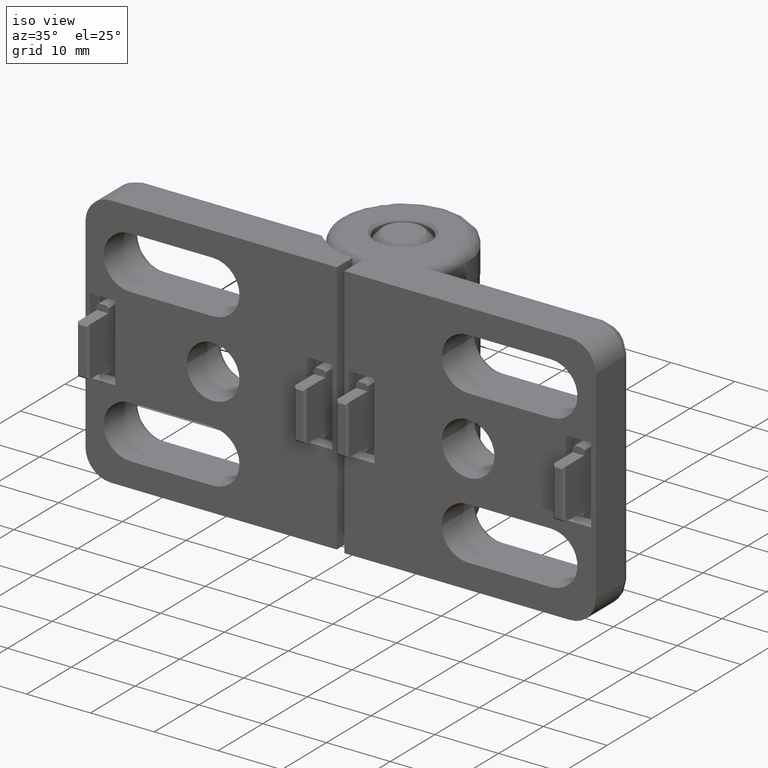
[diagram: clean part render]
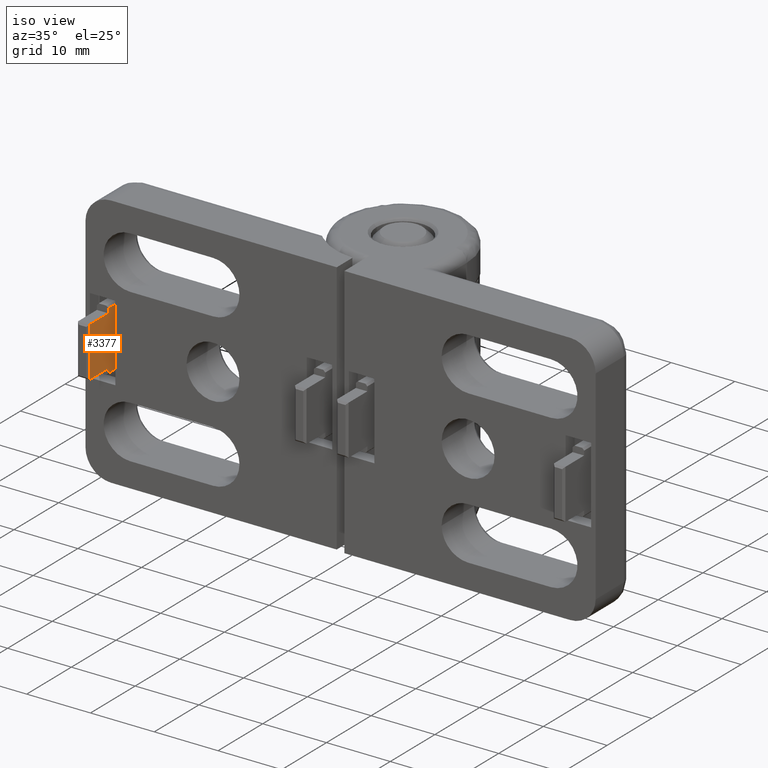
[diagram: same view with one face highlighted and labeled with its STEP entity id]
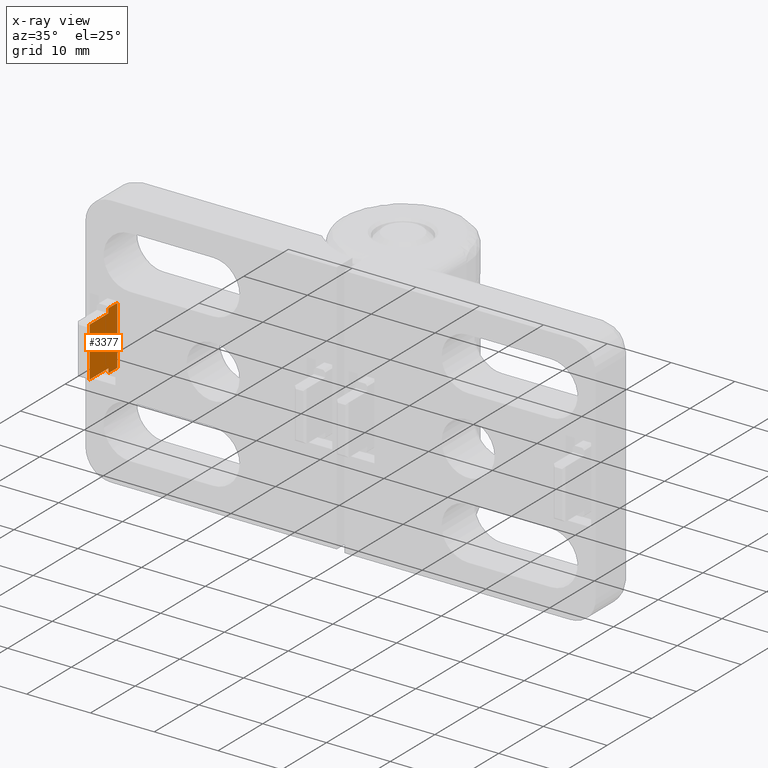
[diagram: x-ray of the same camera — body ghosted, the highlighted face saturated]
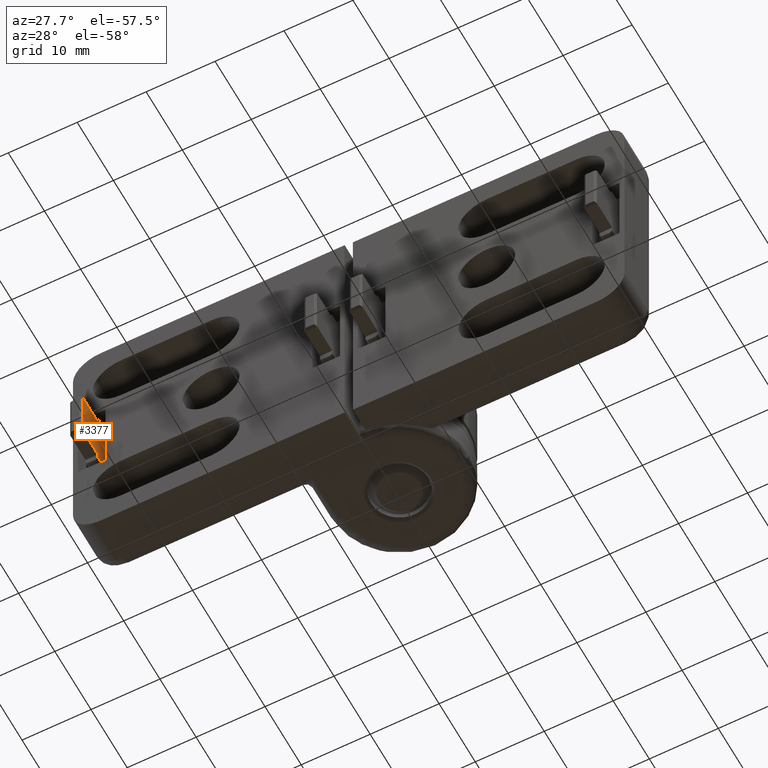
[diagram: same view with one face highlighted and labeled with its STEP entity id]
A machine part, iso view. The second image highlights one B-rep face of the part: STEP entity #3377.
The next image is the same camera in x-ray: the body ghosted, the highlighted face saturated — about 0% of this face is hidden behind the body in this view.
A second angle (auxiliary view) of the same face is appended — the face is thin or edge-on in the first view.
In plain terms, the highlighted planar face has unit normal (-1, 0, 0).
Its self-contained STEP definition (entity closure, byte-faithful):
#39 = DIRECTION ( 'NONE',  ( 0.0000000000000000000, -1.000000000000000000, 0.0000000000000000000 ) ) ;
#52 = CARTESIAN_POINT ( 'NONE',  ( -36.39999999999999100, -14.00000000000000500, -15.10000000000000100 ) ) ;
#74 = VECTOR ( 'NONE', #1892, 1000.000000000000000 ) ;
#101 = CARTESIAN_POINT ( 'NONE',  ( -36.39999999999999100, -18.19999999999999600, -15.10000000000000100 ) ) ;
#306 = CARTESIAN_POINT ( 'NONE',  ( -36.39999999999999100, -18.50000000000000000, -24.59999999999999800 ) ) ;
#395 = CARTESIAN_POINT ( 'NONE',  ( -36.39999999999999100, -14.00000000000000500, -16.10000000000000100 ) ) ;
#408 = VECTOR ( 'NONE', #3704, 1000.000000000000000 ) ;
#415 = CARTESIAN_POINT ( 'NONE',  ( -36.39999999999999100, -18.50000000000000000, -16.10000000000000100 ) ) ;
#443 = DIRECTION ( 'NONE',  ( 0.0000000000000000000, 0.0000000000000000000, 1.000000000000000000 ) ) ;
#717 = CARTESIAN_POINT ( 'NONE',  ( -36.39999999999999100, -18.50000000000000000, -23.90000000000000600 ) ) ;
#776 = ORIENTED_EDGE ( 'NONE', *, *, #1403, .F. ) ;
#882 = EDGE_CURVE ( 'NONE', #4659, #5002, #1346, .T. ) ;
#900 = VERTEX_POINT ( 'NONE', #5287 ) ;
#1006 = LINE ( 'NONE', #2999, #1631 ) ;
#1082 = LINE ( 'NONE', #4406, #74 ) ;
#1095 = VECTOR ( 'NONE', #2246, 1000.000000000000000 ) ;
#1168 = PLANE ( 'NONE',  #2563 ) ;
#1215 = EDGE_CURVE ( 'NONE', #900, #4839, #1978, .T. ) ;
#1346 = LINE ( 'NONE', #52, #1095 ) ;
#1403 = EDGE_CURVE ( 'NONE', #2662, #900, #1082, .T. ) ;
#1449 = VECTOR ( 'NONE', #39, 1000.000000000000000 ) ;
#1477 = CARTESIAN_POINT ( 'NONE',  ( -36.39999999999999100, -14.00000000000000500, -24.59999999999999800 ) ) ;
#1631 = VECTOR ( 'NONE', #443, 1000.000000000000000 ) ;
#1666 = CARTESIAN_POINT ( 'NONE',  ( -36.39999999999999100, -18.50000000000000000, -15.10000000000000100 ) ) ;
#1687 = EDGE_CURVE ( 'NONE', #4839, #5007, #1006, .T. ) ;
#1859 = CARTESIAN_POINT ( 'NONE',  ( -36.39999999999999100, -18.50000000000000000, -15.40000000000000000 ) ) ;
#1892 = DIRECTION ( 'NONE',  ( 0.0000000000000000000, -0.0000000000000000000, -1.000000000000000000 ) ) ;
#1978 = LINE ( 'NONE', #306, #4853 ) ;
#2117 = ORIENTED_EDGE ( 'NONE', *, *, #1215, .F. ) ;
#2127 = EDGE_CURVE ( 'NONE', #3105, #3072, #3436, .T. ) ;
#2143 = CARTESIAN_POINT ( 'NONE',  ( -36.39999999999999100, -12.00000000000000200, -15.40000000000000000 ) ) ;
#2171 = ORIENTED_EDGE ( 'NONE', *, *, #5316, .T. ) ;
#2246 = DIRECTION ( 'NONE',  ( 0.0000000000000000000, 0.0000000000000000000, 1.000000000000000000 ) ) ;
#2334 = CARTESIAN_POINT ( 'NONE',  ( -36.39999999999999100, -14.00000000000000500, -15.40000000000000000 ) ) ;
#2494 = DIRECTION ( 'NONE',  ( -0.0000000000000000000, -1.000000000000000000, 0.0000000000000000000 ) ) ;
#2525 = EDGE_LOOP ( 'NONE', ( #2885, #4932, #2117, #776, #3583, #3955, #2171, #2572 ) ) ;
#2563 = AXIS2_PLACEMENT_3D ( 'NONE', #1666, #2902, #3412 ) ;
#2572 = ORIENTED_EDGE ( 'NONE', *, *, #2127, .F. ) ;
#2662 = VERTEX_POINT ( 'NONE', #2143 ) ;
#2738 = CARTESIAN_POINT ( 'NONE',  ( -36.39999999999999100, -18.19999999999999600, -16.10000000000000100 ) ) ;
#2885 = ORIENTED_EDGE ( 'NONE', *, *, #3847, .F. ) ;
#2902 = DIRECTION ( 'NONE',  ( -1.000000000000000000, 0.0000000000000000000, 0.0000000000000000000 ) ) ;
#2999 = CARTESIAN_POINT ( 'NONE',  ( -36.39999999999999100, -14.00000000000000500, -15.10000000000000100 ) ) ;
#3028 = LINE ( 'NONE', #415, #1449 ) ;
#3072 = VERTEX_POINT ( 'NONE', #2738 ) ;
#3105 = VERTEX_POINT ( 'NONE', #5052 ) ;
#3164 = LINE ( 'NONE', #1859, #4902 ) ;
#3375 = VECTOR ( 'NONE', #5662, 1000.000000000000000 ) ;
#3377 = ADVANCED_FACE ( 'NONE', ( #3801 ), #1168, .F. ) ;
#3412 = DIRECTION ( 'NONE',  ( 0.0000000000000000000, 0.0000000000000000000, 1.000000000000000000 ) ) ;
#3436 = LINE ( 'NONE', #101, #3375 ) ;
#3583 = ORIENTED_EDGE ( 'NONE', *, *, #3603, .F. ) ;
#3603 = EDGE_CURVE ( 'NONE', #5002, #2662, #3164, .T. ) ;
#3704 = DIRECTION ( 'NONE',  ( 0.0000000000000000000, -1.000000000000000000, 0.0000000000000000000 ) ) ;
#3801 = FACE_OUTER_BOUND ( 'NONE', #2525, .T. ) ;
#3847 = EDGE_CURVE ( 'NONE', #5007, #3105, #4487, .T. ) ;
#3955 = ORIENTED_EDGE ( 'NONE', *, *, #882, .F. ) ;
#4060 = CARTESIAN_POINT ( 'NONE',  ( -36.39999999999999100, -14.00000000000000500, -23.90000000000000600 ) ) ;
#4406 = CARTESIAN_POINT ( 'NONE',  ( -36.39999999999999100, -12.00000000000000500, -26.00000000000000700 ) ) ;
#4487 = LINE ( 'NONE', #717, #408 ) ;
#4659 = VERTEX_POINT ( 'NONE', #395 ) ;
#4839 = VERTEX_POINT ( 'NONE', #1477 ) ;
#4853 = VECTOR ( 'NONE', #2494, 1000.000000000000000 ) ;
#4899 = DIRECTION ( 'NONE',  ( 0.0000000000000000000, 1.000000000000000000, -0.0000000000000000000 ) ) ;
#4902 = VECTOR ( 'NONE', #4899, 1000.000000000000000 ) ;
#4932 = ORIENTED_EDGE ( 'NONE', *, *, #1687, .F. ) ;
#5002 = VERTEX_POINT ( 'NONE', #2334 ) ;
#5007 = VERTEX_POINT ( 'NONE', #4060 ) ;
#5052 = CARTESIAN_POINT ( 'NONE',  ( -36.39999999999999100, -18.19999999999999600, -23.90000000000000600 ) ) ;
#5287 = CARTESIAN_POINT ( 'NONE',  ( -36.39999999999999100, -12.00000000000000200, -24.59999999999999800 ) ) ;
#5316 = EDGE_CURVE ( 'NONE', #4659, #3072, #3028, .T. ) ;
#5662 = DIRECTION ( 'NONE',  ( 0.0000000000000000000, 0.0000000000000000000, 1.000000000000000000 ) ) ;